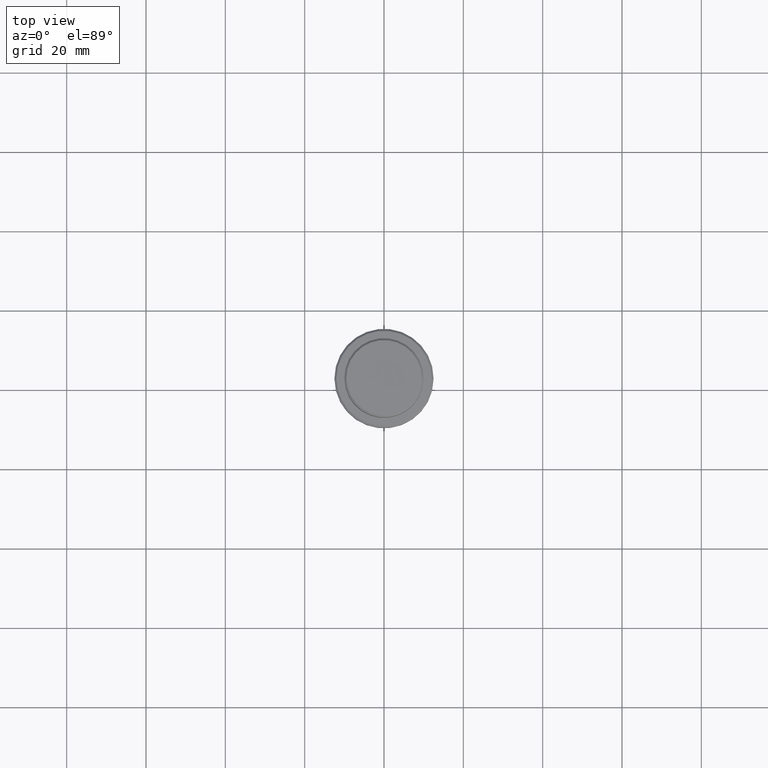
[diagram: clean part render]
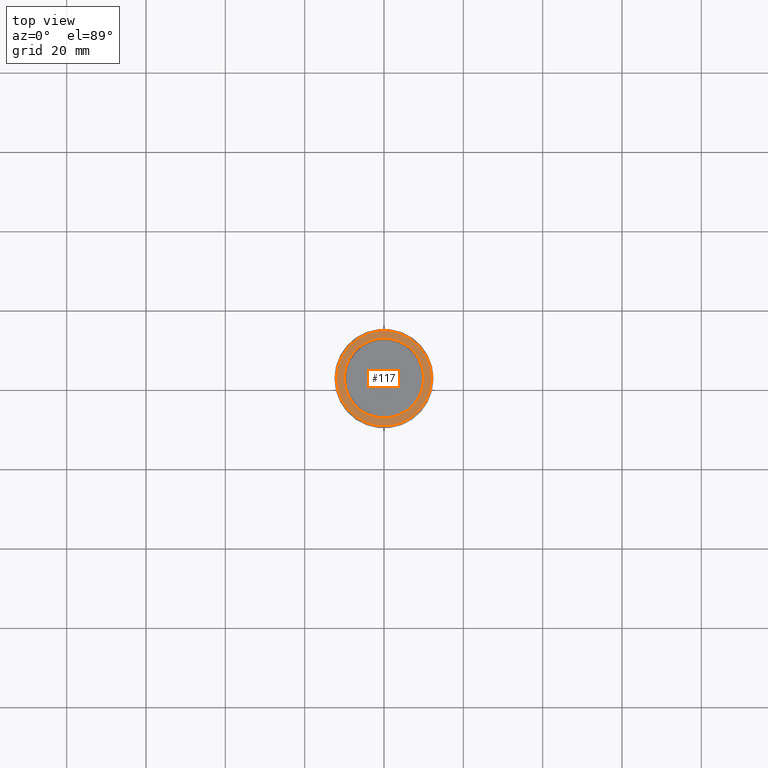
[diagram: same view with one face highlighted and labeled with its STEP entity id]
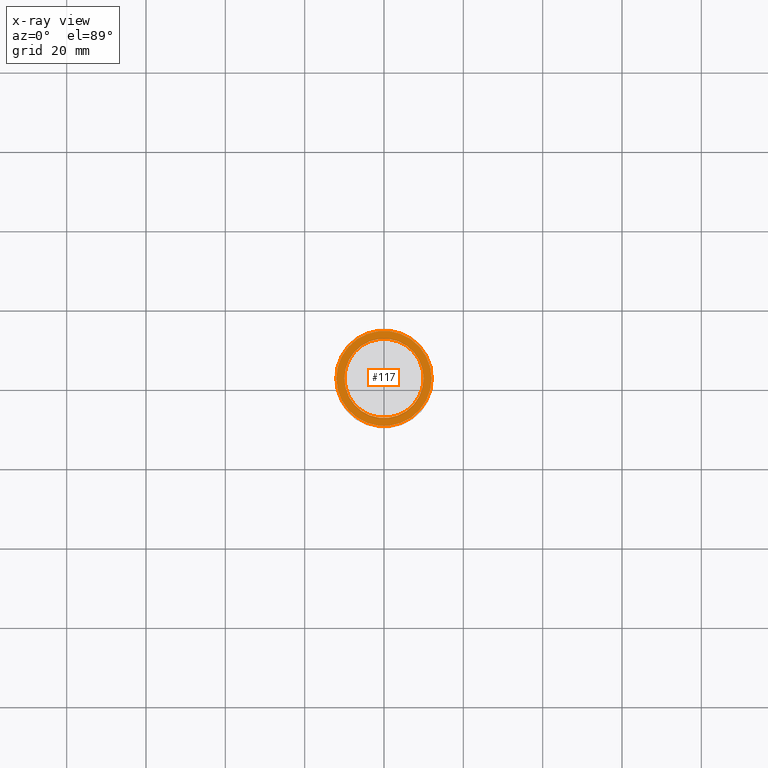
[diagram: x-ray of the same camera — body ghosted, the highlighted face saturated]
A machine part, top view. The second image highlights one B-rep face of the part: STEP entity #117.
The next image is the same camera in x-ray: the body ghosted, the highlighted face saturated — about 0% of this face is hidden behind the body in this view.
In plain terms, the highlighted planar face has unit normal (0, -0, 1).
Its self-contained STEP definition (entity closure, byte-faithful):
#19 = DIRECTION ( 'NONE',  ( 0.000000000000000000, 0.000000000000000000, -1.000000000000000000 ) ) ;
#24 = EDGE_CURVE ( 'NONE', #1147, #614, #841, .T. ) ;
#31 = AXIS2_PLACEMENT_3D ( 'NONE', #897, #19, #215 ) ;
#41 = EDGE_CURVE ( 'NONE', #614, #1147, #932, .T. ) ;
#71 = DIRECTION ( 'NONE',  ( 0.000000000000000000, -0.000000000000000000, 1.000000000000000000 ) ) ;
#81 = AXIS2_PLACEMENT_3D ( 'NONE', #397, #71, #648 ) ;
#117 = ADVANCED_FACE ( 'NONE', ( #120, #948 ), #1158, .T. ) ;
#120 = FACE_OUTER_BOUND ( 'NONE', #1083, .T. ) ;
#215 = DIRECTION ( 'NONE',  ( 1.000000000000000000, 0.000000000000000000, 0.000000000000000000 ) ) ;
#284 = ORIENTED_EDGE ( 'NONE', *, *, #351, .T. ) ;
#289 = ORIENTED_EDGE ( 'NONE', *, *, #1374, .T. ) ;
#345 = CARTESIAN_POINT ( 'NONE',  ( 12.00000000000003908, 1.500192328955510101E-15, -9.000000000000000000 ) ) ;
#351 = EDGE_CURVE ( 'NONE', #1377, #743, #1093, .T. ) ;
#381 = ORIENTED_EDGE ( 'NONE', *, *, #24, .T. ) ;
#397 = CARTESIAN_POINT ( 'NONE',  ( 0.000000000000000000, 9.499999999999992895, -9.000000000000000000 ) ) ;
#451 = CARTESIAN_POINT ( 'NONE',  ( -12.00000000000003908, 0.000000000000000000, -9.000000000000000000 ) ) ;
#486 = DIRECTION ( 'NONE',  ( 1.000000000000000000, 0.000000000000000000, 0.000000000000000000 ) ) ;
#492 = CARTESIAN_POINT ( 'NONE',  ( 0.000000000000000000, 0.000000000000000000, -9.000000000000000000 ) ) ;
#614 = VERTEX_POINT ( 'NONE', #345 ) ;
#648 = DIRECTION ( 'NONE',  ( 1.000000000000000000, 0.000000000000000000, 0.000000000000000000 ) ) ;
#713 = ORIENTED_EDGE ( 'NONE', *, *, #41, .T. ) ;
#720 = DIRECTION ( 'NONE',  ( -0.000000000000000000, -0.000000000000000000, 1.000000000000000000 ) ) ;
#743 = VERTEX_POINT ( 'NONE', #1162 ) ;
#753 = CIRCLE ( 'NONE', #1069, 9.999999999999992895 ) ;
#806 = DIRECTION ( 'NONE',  ( 1.000000000000000000, 0.000000000000000000, 0.000000000000000000 ) ) ;
#835 = DIRECTION ( 'NONE',  ( 0.000000000000000000, 0.000000000000000000, -1.000000000000000000 ) ) ;
#841 = CIRCLE ( 'NONE', #1349, 12.00000000000003908 ) ;
#859 = CARTESIAN_POINT ( 'NONE',  ( 9.999999999999992895, 0.000000000000000000, -9.000000000000000000 ) ) ;
#880 = EDGE_LOOP ( 'NONE', ( #284, #289 ) ) ;
#897 = CARTESIAN_POINT ( 'NONE',  ( 0.000000000000000000, 0.000000000000000000, -9.000000000000000000 ) ) ;
#919 = CARTESIAN_POINT ( 'NONE',  ( 0.000000000000000000, 0.000000000000000000, -9.000000000000000000 ) ) ;
#932 = CIRCLE ( 'NONE', #1091, 12.00000000000003908 ) ;
#948 = FACE_BOUND ( 'NONE', #880, .T. ) ;
#952 = CARTESIAN_POINT ( 'NONE',  ( 0.000000000000000000, 0.000000000000000000, -9.000000000000000000 ) ) ;
#1069 = AXIS2_PLACEMENT_3D ( 'NONE', #952, #835, #1368 ) ;
#1083 = EDGE_LOOP ( 'NONE', ( #381, #713 ) ) ;
#1091 = AXIS2_PLACEMENT_3D ( 'NONE', #492, #720, #806 ) ;
#1093 = CIRCLE ( 'NONE', #31, 9.999999999999992895 ) ;
#1147 = VERTEX_POINT ( 'NONE', #451 ) ;
#1158 = PLANE ( 'NONE',  #81 ) ;
#1162 = CARTESIAN_POINT ( 'NONE',  ( -9.999999999999992895, 1.224646799147352468E-15, -9.000000000000000000 ) ) ;
#1242 = DIRECTION ( 'NONE',  ( -0.000000000000000000, -0.000000000000000000, 1.000000000000000000 ) ) ;
#1349 = AXIS2_PLACEMENT_3D ( 'NONE', #919, #1242, #486 ) ;
#1368 = DIRECTION ( 'NONE',  ( 1.000000000000000000, 0.000000000000000000, 0.000000000000000000 ) ) ;
#1374 = EDGE_CURVE ( 'NONE', #743, #1377, #753, .T. ) ;
#1377 = VERTEX_POINT ( 'NONE', #859 ) ;